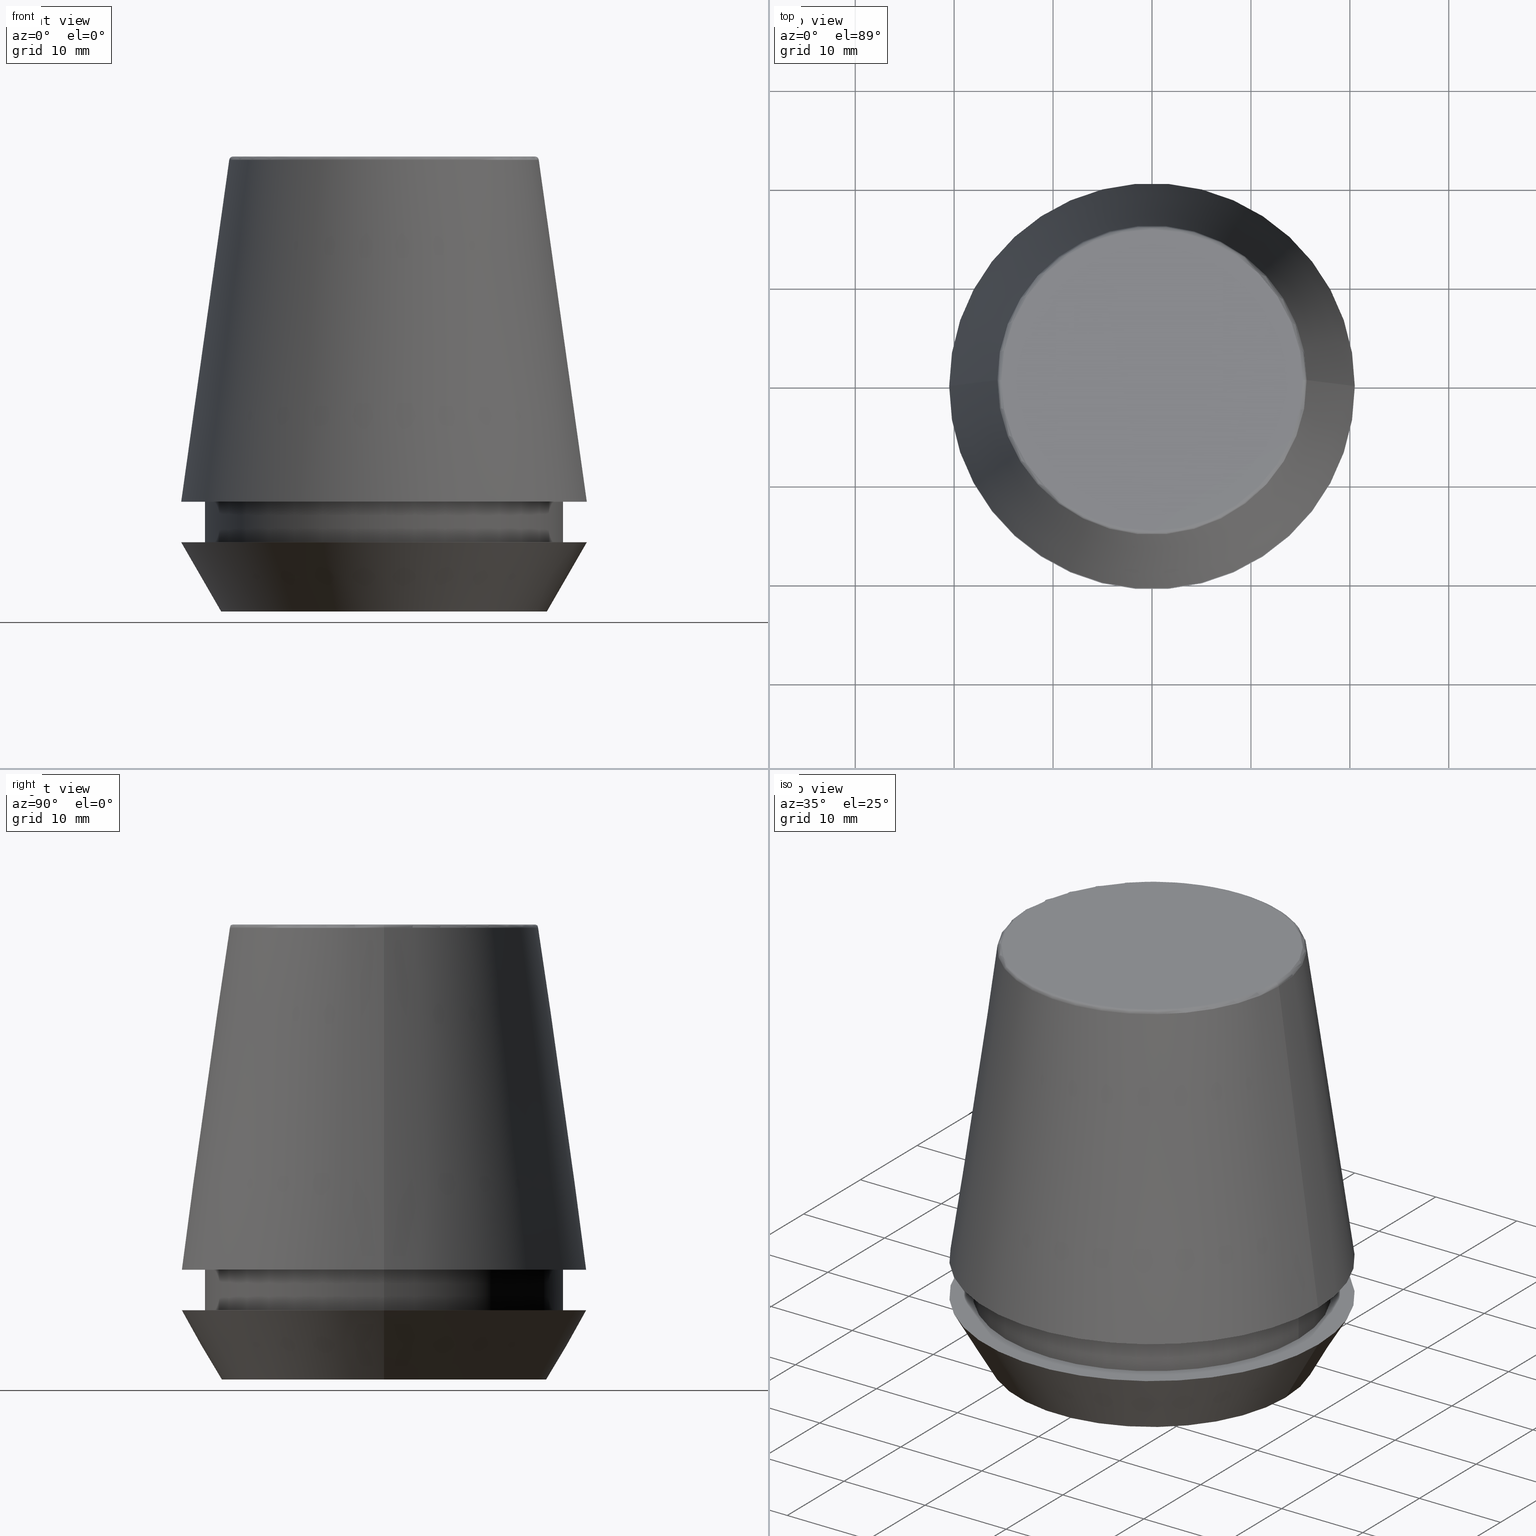
[diagram: canonical four-view strip — front | top / right | iso, engineering-drawing reading convention]
A machine part, canonical four-view strip (front | top / right | iso — engineering-drawing reading convention). The complete STEP part file that produces these views, byte-faithful:
ISO-10303-21;
HEADER;
FILE_DESCRIPTION (( 'STEP AP203' ),
    '1' );
FILE_NAME ('TAP COLLET ER 40G 10.0 X 8.0.STEP',
    '2019-04-10T03:52:26',
    ( '' ),
    ( '' ),
    'SwSTEP 2.0',
    'SolidWorks 2014',
    '' );
FILE_SCHEMA (( 'CONFIG_CONTROL_DESIGN' ));
ENDSEC;

DATA;
#1 = AXIS2_PLACEMENT_3D ( 'NONE', #218, #126, #375 ) ;
#2 = DIRECTION ( 'NONE',  ( 1.000000000000000000, 0.0000000000000000000, 0.0000000000000000000 ) ) ;
#3 = EDGE_CURVE ( 'NONE', #191, #173, #342, .T. ) ;
#4 = PRODUCT_RELATED_PRODUCT_CATEGORY ( 'detail', '', ( #16 ) ) ;
#5 = DIRECTION ( 'NONE',  ( 1.000000000000000000, 0.0000000000000000000, 0.0000000000000000000 ) ) ;
#6 = ORIENTED_EDGE ( 'NONE', *, *, #244, .F. ) ;
#7 = CARTESIAN_POINT ( 'NONE',  ( 0.0000000000000000000, 0.0000000000000000000, 11.09999999999999800 ) ) ;
#8 = CIRCLE ( 'NONE', #165, 0.3999999999999975800 ) ;
#9 = CARTESIAN_POINT ( 'NONE',  ( 16.45854811567268100, 0.0000000000000000000, 0.0000000000000000000 ) ) ;
#10 = AXIS2_PLACEMENT_3D ( 'NONE', #73, #252, #41 ) ;
#11 = ORIENTED_EDGE ( 'NONE', *, *, #358, .F. ) ;
#12 = DIRECTION ( 'NONE',  ( 0.0000000000000000000, -0.0000000000000000000, 1.000000000000000000 ) ) ;
#13 = DIRECTION ( 'NONE',  ( 0.0000000000000000000, 0.0000000000000000000, 1.000000000000000000 ) ) ;
#14 = ORIENTED_EDGE ( 'NONE', *, *, #85, .T. ) ;
#15 = DIRECTION ( 'NONE',  ( 0.0000000000000000000, 0.0000000000000000000, -1.000000000000000000 ) ) ;
#16 = PRODUCT ( 'TAP COLLET ER 40G 10.0 X 8.0', 'TAP COLLET ER 40G 10.0 X 8.0', '', ( #383 ) ) ;
#17 = PERSON_AND_ORGANIZATION_ROLE ( 'design_owner' ) ;
#18 = ORIENTED_EDGE ( 'NONE', *, *, #331, .F. ) ;
#19 = VERTEX_POINT ( 'NONE', #194 ) ;
#20 = UNCERTAINTY_MEASURE_WITH_UNIT (LENGTH_MEASURE( 1.000000000000000100E-005 ), #205, 'distance_accuracy_value', 'NONE');
#21 = EDGE_CURVE ( 'NONE', #325, #309, #322, .T. ) ;
#22 = CIRCLE ( 'NONE', #67, 16.45854811567268100 ) ;
#23 = ADVANCED_FACE ( 'NONE', ( #359 ), #295, .T. ) ;
#24 = DATE_AND_TIME ( #61, #142 ) ;
#25 = AXIS2_PLACEMENT_3D ( 'NONE', #56, #243, #318 ) ;
#26 = EDGE_LOOP ( 'NONE', ( #164, #18, #45, #304 ) ) ;
#27 = PRODUCT_DEFINITION_FORMATION_WITH_SPECIFIED_SOURCE ( 'ANY', '', #16, .NOT_KNOWN. ) ;
#28 = EDGE_CURVE ( 'NONE', #114, #29, #22, .T. ) ;
#29 = VERTEX_POINT ( 'NONE', #348 ) ;
#30 = ORIENTED_EDGE ( 'NONE', *, *, #185, .T. ) ;
#31 = FACE_OUTER_BOUND ( 'NONE', #62, .T. ) ;
#32 = DIRECTION ( 'NONE',  ( 1.000000000000000000, 0.0000000000000000000, 0.0000000000000000000 ) ) ;
#33 = CARTESIAN_POINT ( 'NONE',  ( 0.0000000000000000000, 0.0000000000000000000, 46.00000000000000000 ) ) ;
#34 = ORIENTED_EDGE ( 'NONE', *, *, #28, .F. ) ;
#35 = AXIS2_PLACEMENT_3D ( 'NONE', #38, #248, #70 ) ;
#36 = ORIENTED_EDGE ( 'NONE', *, *, #242, .T. ) ;
#37 = ORIENTED_EDGE ( 'NONE', *, *, #48, .T. ) ;
#38 = CARTESIAN_POINT ( 'NONE',  ( 0.0000000000000000000, 0.0000000000000000000, 45.65566924038402900 ) ) ;
#39 = EDGE_LOOP ( 'NONE', ( #240, #158, #335, #277 ) ) ;
#40 = DIRECTION ( 'NONE',  ( -0.0000000000000000000, -0.0000000000000000000, 1.000000000000000000 ) ) ;
#41 = DIRECTION ( 'NONE',  ( 0.0000000000000000000, 0.0000000000000000000, -1.000000000000000000 ) ) ;
#42 = CARTESIAN_POINT ( 'NONE',  ( -20.50000000000000000, 2.510525938252074100E-015, 7.000000000000006200 ) ) ;
#43 = ORIENTED_EDGE ( 'NONE', *, *, #242, .F. ) ;
#44 = VERTEX_POINT ( 'NONE', #372 ) ;
#45 = ORIENTED_EDGE ( 'NONE', *, *, #381, .T. ) ;
#46 = DIRECTION ( 'NONE',  ( 0.0000000000000000000, 0.0000000000000000000, -1.000000000000000000 ) ) ;
#47 = DIRECTION ( 'NONE',  ( -0.0000000000000000000, -0.0000000000000000000, 1.000000000000000000 ) ) ;
#48 = EDGE_CURVE ( 'NONE', #19, #94, #236, .T. ) ;
#49 = CARTESIAN_POINT ( 'NONE',  ( 0.0000000000000000000, 0.0000000000000000000, 0.0000000000000000000 ) ) ;
#50 = CARTESIAN_POINT ( 'NONE',  ( -15.24773554530077600, 1.867309052979791600E-015, 45.60000000000000100 ) ) ;
#51 = AXIS2_PLACEMENT_3D ( 'NONE', #79, #300, #186 ) ;
#52 = APPLICATION_PROTOCOL_DEFINITION ( 'international standard', 'config_control_design', 1994, #231 ) ;
#53 = ORIENTED_EDGE ( 'NONE', *, *, #232, .T. ) ;
#54 = CARTESIAN_POINT ( 'NONE',  ( -20.50032537154048700, 0.0000000000000000000, 11.09999999999999800 ) ) ;
#55 = ORIENTED_EDGE ( 'NONE', *, *, #89, .F. ) ;
#56 = CARTESIAN_POINT ( 'NONE',  ( 0.0000000000000000000, 0.0000000000000000000, 7.000000000000006200 ) ) ;
#57 = AXIS2_PLACEMENT_3D ( 'NONE', #310, #128, #5 ) ;
#58 = APPROVAL ( #182, 'UNSPECIFIED' ) ;
#59 = CARTESIAN_POINT ( 'NONE',  ( -18.10000000000000500, 2.216610706456710000E-015, 11.09999999999999800 ) ) ;
#60 = ORIENTED_EDGE ( 'NONE', *, *, #193, .F. ) ;
#61 = CALENDAR_DATE ( 2019, 10, 4 ) ;
#62 = EDGE_LOOP ( 'NONE', ( #181, #53, #371, #84 ) ) ;
#63 = CARTESIAN_POINT ( 'NONE',  ( 18.10000000000000100, 0.0000000000000000000, 6.999999999999999100 ) ) ;
#64 = EDGE_LOOP ( 'NONE', ( #88, #30 ) ) ;
#65 = PERSON_AND_ORGANIZATION ( #308, #97 ) ;
#66 = APPROVAL ( #364, 'UNSPECIFIED' ) ;
#67 = AXIS2_PLACEMENT_3D ( 'NONE', #197, #159, #82 ) ;
#68 = EDGE_LOOP ( 'NONE', ( #301, #387, #95, #43 ) ) ;
#69 = EDGE_CURVE ( 'NONE', #184, #131, #215, .T. ) ;
#70 = DIRECTION ( 'NONE',  ( 1.000000000000000000, 0.0000000000000000000, 0.0000000000000000000 ) ) ;
#71 = CARTESIAN_POINT ( 'NONE',  ( 16.45854811567268100, 0.0000000000000000000, 0.0000000000000000000 ) ) ;
#72 = CC_DESIGN_PERSON_AND_ORGANIZATION_ASSIGNMENT ( #100, #138, ( #27 ) ) ;
#73 = CARTESIAN_POINT ( 'NONE',  ( 15.24773554530077600, 0.0000000000000000000, 45.60000000000000100 ) ) ;
#74 = ORIENTED_EDGE ( 'NONE', *, *, #244, .T. ) ;
#75 = ADVANCED_BREP_SHAPE_REPRESENTATION ( 'TAP COLLET ER 40G 10.0 X 8.0', ( #382, #213 ), #176 ) ;
#76 = DIRECTION ( 'NONE',  ( -0.4999999999999941700, 6.123233995736694500E-017, 0.8660254037844420400 ) ) ;
#77 = DIRECTION ( 'NONE',  ( 0.4999999999999941700, 0.0000000000000000000, 0.8660254037844420400 ) ) ;
#78 = AXIS2_PLACEMENT_3D ( 'NONE', #350, #99, #320 ) ;
#79 = CARTESIAN_POINT ( 'NONE',  ( 0.0000000000000000000, 0.0000000000000000000, 11.09999999999999800 ) ) ;
#80 = CALENDAR_DATE ( 2019, 10, 4 ) ;
#81 = APPROVAL_ROLE ( '' ) ;
#82 = DIRECTION ( 'NONE',  ( 1.000000000000000000, 0.0000000000000000000, 0.0000000000000000000 ) ) ;
#83 = EDGE_LOOP ( 'NONE', ( #267, #289 ) ) ;
#84 = ORIENTED_EDGE ( 'NONE', *, *, #381, .F. ) ;
#85 = EDGE_CURVE ( 'NONE', #136, #363, #385, .T. ) ;
#86 = CALENDAR_DATE ( 2019, 10, 4 ) ;
#87 = APPROVAL_DATE_TIME ( #291, #66 ) ;
#88 = ORIENTED_EDGE ( 'NONE', *, *, #3, .T. ) ;
#89 = EDGE_CURVE ( 'NONE', #309, #325, #288, .T. ) ;
#90 = DIRECTION ( 'NONE',  ( -0.0000000000000000000, -0.0000000000000000000, 1.000000000000000000 ) ) ;
#91 = APPROVAL_PERSON_ORGANIZATION ( #192, #241, #81 ) ;
#92 = LINE ( 'NONE', #229, #311 ) ;
#93 = ORIENTED_EDGE ( 'NONE', *, *, #265, .F. ) ;
#94 = VERTEX_POINT ( 'NONE', #351 ) ;
#95 = ORIENTED_EDGE ( 'NONE', *, *, #21, .F. ) ;
#96 = CIRCLE ( 'NONE', #313, 15.24773554530077600 ) ;
#97 = ORGANIZATION ( 'UNSPECIFIED', 'UNSPECIFIED', '' ) ;
#98 = DIRECTION ( 'NONE',  ( -0.0000000000000000000, -0.0000000000000000000, 1.000000000000000000 ) ) ;
#99 = DIRECTION ( 'NONE',  ( -0.0000000000000000000, -0.0000000000000000000, 1.000000000000000000 ) ) ;
#100 = PERSON_AND_ORGANIZATION ( #308, #97 ) ;
#101 = DIRECTION ( 'NONE',  ( -0.0000000000000000000, -0.0000000000000000000, 1.000000000000000000 ) ) ;
#102 = DIRECTION ( 'NONE',  ( 1.000000000000000000, 0.0000000000000000000, 0.0000000000000000000 ) ) ;
#103 = EDGE_CURVE ( 'NONE', #44, #189, #201, .T. ) ;
#104 = CARTESIAN_POINT ( 'NONE',  ( 0.0000000000000000000, 0.0000000000000000000, 46.00000000000000000 ) ) ;
#105 = DIRECTION ( 'NONE',  ( -0.0000000000000000000, -0.0000000000000000000, 1.000000000000000000 ) ) ;
#106 = CARTESIAN_POINT ( 'NONE',  ( -20.50032537154048700, 0.0000000000000000000, 11.09999999999999800 ) ) ;
#107 = APPROVAL_DATE_TIME ( #183, #241 ) ;
#108 = ORIENTED_EDGE ( 'NONE', *, *, #156, .F. ) ;
#109 = COORDINATED_UNIVERSAL_TIME_OFFSET ( 5, 30, .AHEAD. ) ;
#110 = ADVANCED_FACE ( 'NONE', ( #327, #298 ), #276, .F. ) ;
#111 = VECTOR ( 'NONE', #116, 1000.000000000000000 ) ;
#112 = CIRCLE ( 'NONE', #222, 18.10000000000000100 ) ;
#113 = DIRECTION ( 'NONE',  ( 1.000000000000000000, 0.0000000000000000000, 0.0000000000000000000 ) ) ;
#114 = VERTEX_POINT ( 'NONE', #71 ) ;
#115 = AXIS2_PLACEMENT_3D ( 'NONE', #224, #40, #2 ) ;
#116 = DIRECTION ( 'NONE',  ( 0.1391731009600587200, 1.704378926181473400E-017, -0.9902680687415712500 ) ) ;
#117 = ORIENTED_EDGE ( 'NONE', *, *, #21, .T. ) ;
#118 = COORDINATED_UNIVERSAL_TIME_OFFSET ( 5, 30, .AHEAD. ) ;
#119 = DIRECTION ( 'NONE',  ( 0.0000000000000000000, -0.0000000000000000000, 1.000000000000000000 ) ) ;
#120 = PERSON_AND_ORGANIZATION ( #308, #97 ) ;
#121 = AXIS2_PLACEMENT_3D ( 'NONE', #154, #292, #162 ) ;
#122 = CC_DESIGN_PERSON_AND_ORGANIZATION_ASSIGNMENT ( #195, #361, ( #27 ) ) ;
#123 = CALENDAR_DATE ( 2019, 10, 4 ) ;
#124 = DATE_AND_TIME ( #123, #150 ) ;
#125 = ORIENTED_EDGE ( 'NONE', *, *, #237, .F. ) ;
#126 = DIRECTION ( 'NONE',  ( 0.0000000000000000000, 0.0000000000000000000, -1.000000000000000000 ) ) ;
#127 = PERSON_AND_ORGANIZATION ( #308, #97 ) ;
#128 = DIRECTION ( 'NONE',  ( -0.0000000000000000000, -0.0000000000000000000, 1.000000000000000000 ) ) ;
#129 = EDGE_LOOP ( 'NONE', ( #117, #285 ) ) ;
#130 = PLANE ( 'NONE',  #226 ) ;
#131 = VERTEX_POINT ( 'NONE', #198 ) ;
#132 = DIRECTION ( 'NONE',  ( -0.0000000000000000000, -0.0000000000000000000, 1.000000000000000000 ) ) ;
#133 = DIRECTION ( 'NONE',  ( 1.000000000000000000, 0.0000000000000000000, 0.0000000000000000000 ) ) ;
#134 = APPROVAL_PERSON_ORGANIZATION ( #127, #58, #211 ) ;
#135 = CIRCLE ( 'NONE', #293, 15.64384277279740400 ) ;
#136 = VERTEX_POINT ( 'NONE', #160 ) ;
#137 =( NAMED_UNIT ( * ) SI_UNIT ( $, .STERADIAN. ) SOLID_ANGLE_UNIT ( ) );
#138 = PERSON_AND_ORGANIZATION_ROLE ( 'design_supplier' ) ;
#139 = COORDINATED_UNIVERSAL_TIME_OFFSET ( 5, 30, .AHEAD. ) ;
#140 = PERSON_AND_ORGANIZATION_ROLE ( 'classification_officer' ) ;
#141 = CARTESIAN_POINT ( 'NONE',  ( 0.0000000000000000000, 15.24773554530077600, 46.00000000000000000 ) ) ;
#142 = LOCAL_TIME ( 9, 22, 26.00000000000000000, #139 ) ;
#143 = CC_DESIGN_APPROVAL ( #66, ( #27 ) ) ;
#144 = ORIENTED_EDGE ( 'NONE', *, *, #302, .F. ) ;
#145 = ADVANCED_FACE ( 'NONE', ( #303 ), #297, .T. ) ;
#146 = APPROVAL_PERSON_ORGANIZATION ( #166, #66, #305 ) ;
#147 = DIRECTION ( 'NONE',  ( -1.000000000000000000, 1.224646799147353900E-016, 0.0000000000000000000 ) ) ;
#148 = ORIENTED_EDGE ( 'NONE', *, *, #185, .F. ) ;
#149 = CARTESIAN_POINT ( 'NONE',  ( 0.0000000000000000000, 0.0000000000000000000, 7.000000000000006200 ) ) ;
#150 = LOCAL_TIME ( 9, 22, 26.00000000000000000, #221 ) ;
#151 = AXIS2_PLACEMENT_3D ( 'NONE', #321, #101, #294 ) ;
#152 = AXIS2_PLACEMENT_3D ( 'NONE', #230, #15, #312 ) ;
#153 = LINE ( 'NONE', #106, #317 ) ;
#154 = CARTESIAN_POINT ( 'NONE',  ( 0.0000000000000000000, 0.0000000000000000000, 46.00000000000000000 ) ) ;
#155 = LOCAL_TIME ( 9, 22, 26.00000000000000000, #118 ) ;
#156 = EDGE_CURVE ( 'NONE', #19, #131, #287, .T. ) ;
#157 = ADVANCED_FACE ( 'NONE', ( #286 ), #260, .T. ) ;
#158 = ORIENTED_EDGE ( 'NONE', *, *, #331, .T. ) ;
#159 = DIRECTION ( 'NONE',  ( -0.0000000000000000000, -0.0000000000000000000, 1.000000000000000000 ) ) ;
#160 = CARTESIAN_POINT ( 'NONE',  ( -18.10000000000000100, 2.216610706456709600E-015, 6.999999999999999100 ) ) ;
#161 = ADVANCED_FACE ( 'NONE', ( #261 ), #275, .T. ) ;
#162 = DIRECTION ( 'NONE',  ( 1.000000000000000000, 0.0000000000000000000, 0.0000000000000000000 ) ) ;
#163 = ORIENTED_EDGE ( 'NONE', *, *, #85, .F. ) ;
#164 = ORIENTED_EDGE ( 'NONE', *, *, #232, .F. ) ;
#165 = AXIS2_PLACEMENT_3D ( 'NONE', #50, #238, #147 ) ;
#166 = PERSON_AND_ORGANIZATION ( #308, #97 ) ;
#167 = DIRECTION ( 'NONE',  ( 1.000000000000000000, 0.0000000000000000000, 0.0000000000000000000 ) ) ;
#168 = DIRECTION ( 'NONE',  ( 1.000000000000000000, 0.0000000000000000000, 0.0000000000000000000 ) ) ;
#169 = DIRECTION ( 'NONE',  ( -0.0000000000000000000, -0.0000000000000000000, 1.000000000000000000 ) ) ;
#170 = CARTESIAN_POINT ( 'NONE',  ( 0.0000000000000000000, 0.0000000000000000000, 45.65566924038402900 ) ) ;
#171 = CARTESIAN_POINT ( 'NONE',  ( -16.45854811567268100, 2.015590826847124800E-015, 0.0000000000000000000 ) ) ;
#172 = DESIGN_CONTEXT ( 'detailed design', #231, 'design' ) ;
#173 = VERTEX_POINT ( 'NONE', #42 ) ;
#174 = FACE_BOUND ( 'NONE', #129, .T. ) ;
#175 = APPLICATION_CONTEXT ( 'configuration controlled 3d designs of mechanical parts and assemblies' ) ;
#176 =( GEOMETRIC_REPRESENTATION_CONTEXT ( 3 ) GLOBAL_UNCERTAINTY_ASSIGNED_CONTEXT ( ( #20 ) ) GLOBAL_UNIT_ASSIGNED_CONTEXT ( ( #205, #340, #137 ) ) REPRESENTATION_CONTEXT ( 'NONE', 'WORKASPACE' ) );
#177 = ORIENTED_EDGE ( 'NONE', *, *, #28, .T. ) ;
#178 = DATE_TIME_ROLE ( 'classification_date' ) ;
#179 = ORIENTED_EDGE ( 'NONE', *, *, #3, .F. ) ;
#180 = ORIENTED_EDGE ( 'NONE', *, *, #347, .F. ) ;
#181 = ORIENTED_EDGE ( 'NONE', *, *, #48, .F. ) ;
#182 = APPROVAL_STATUS ( 'not_yet_approved' ) ;
#183 = DATE_AND_TIME ( #228, #299 ) ;
#184 = VERTEX_POINT ( 'NONE', #225 ) ;
#185 = EDGE_CURVE ( 'NONE', #173, #191, #257, .T. ) ;
#186 = DIRECTION ( 'NONE',  ( 1.000000000000000000, 0.0000000000000000000, 0.0000000000000000000 ) ) ;
#187 = CONICAL_SURFACE ( 'NONE', #370, 16.45854811567268100, 0.5235987755982921500 ) ;
#188 = CARTESIAN_POINT ( 'NONE',  ( 18.10000000000000500, 0.0000000000000000000, 46.00000000000000000 ) ) ;
#189 = VERTEX_POINT ( 'NONE', #54 ) ;
#190 = CC_DESIGN_SECURITY_CLASSIFICATION ( #217, ( #27 ) ) ;
#191 = VERTEX_POINT ( 'NONE', #255 ) ;
#192 = PERSON_AND_ORGANIZATION ( #308, #97 ) ;
#193 = EDGE_CURVE ( 'NONE', #29, #173, #273, .T. ) ;
#194 = CARTESIAN_POINT ( 'NONE',  ( 15.64384277279740400, 2.213191991290356800E-015, 45.65566924038402900 ) ) ;
#195 = PERSON_AND_ORGANIZATION ( #308, #97 ) ;
#196 = FACE_OUTER_BOUND ( 'NONE', #353, .T. ) ;
#197 = CARTESIAN_POINT ( 'NONE',  ( 0.0000000000000000000, 0.0000000000000000000, 0.0000000000000000000 ) ) ;
#198 = CARTESIAN_POINT ( 'NONE',  ( 15.24773554530077600, 0.0000000000000000000, 46.00000000000000000 ) ) ;
#199 = CARTESIAN_POINT ( 'NONE',  ( 0.0000000000000000000, 0.0000000000000000000, 46.00000000000000000 ) ) ;
#200 = DIRECTION ( 'NONE',  ( 0.0000000000000000000, 0.0000000000000000000, -1.000000000000000000 ) ) ;
#201 = CIRCLE ( 'NONE', #78, 20.50032537154048700 ) ;
#202 = ORIENTED_EDGE ( 'NONE', *, *, #103, .F. ) ;
#203 = DIRECTION ( 'NONE',  ( 1.000000000000000000, 0.0000000000000000000, 0.0000000000000000000 ) ) ;
#204 = DIRECTION ( 'NONE',  ( 1.000000000000000000, 0.0000000000000000000, 0.0000000000000000000 ) ) ;
#205 =( LENGTH_UNIT ( ) NAMED_UNIT ( * ) SI_UNIT ( .MILLI., .METRE. ) );
#206 = CONICAL_SURFACE ( 'NONE', #152, 20.50032537154048700, 0.1396263401595396200 ) ;
#207 = ADVANCED_FACE ( 'NONE', ( #250 ), #130, .F. ) ;
#208 = CC_DESIGN_PERSON_AND_ORGANIZATION_ASSIGNMENT ( #120, #140, ( #217 ) ) ;
#209 = ADVANCED_FACE ( 'NONE', ( #269 ), #282, .T. ) ;
#210 = CC_DESIGN_DATE_AND_TIME_ASSIGNMENT ( #124, #178, ( #217 ) ) ;
#211 = APPROVAL_ROLE ( '' ) ;
#212 = ORIENTED_EDGE ( 'NONE', *, *, #368, .T. ) ;
#213 = AXIS2_PLACEMENT_3D ( 'NONE', #266, #13, #204 ) ;
#214 = APPROVAL_DATE_TIME ( #24, #58 ) ;
#215 = CIRCLE ( 'NONE', #121, 15.24773554530077600 ) ;
#216 = CC_DESIGN_PERSON_AND_ORGANIZATION_ASSIGNMENT ( #65, #17, ( #16 ) ) ;
#217 = SECURITY_CLASSIFICATION ( '', '', #333 ) ;
#218 = CARTESIAN_POINT ( 'NONE',  ( 0.0000000000000000000, 20.50000000000000000, 7.000000000000002700 ) ) ;
#219 = CC_DESIGN_APPROVAL ( #58, ( #217 ) ) ;
#220 = ADVANCED_FACE ( 'NONE', ( #274 ), #264, .F. ) ;
#221 = COORDINATED_UNIVERSAL_TIME_OFFSET ( 5, 30, .AHEAD. ) ;
#222 = AXIS2_PLACEMENT_3D ( 'NONE', #354, #169, #378 ) ;
#223 = LOCAL_TIME ( 9, 22, 26.00000000000000000, #324 ) ;
#224 = CARTESIAN_POINT ( 'NONE',  ( 0.0000000000000000000, 0.0000000000000000000, 11.09999999999999800 ) ) ;
#225 = CARTESIAN_POINT ( 'NONE',  ( -15.24773554530077600, 1.891563625393435400E-015, 46.00000000000000000 ) ) ;
#226 = AXIS2_PLACEMENT_3D ( 'NONE', #352, #119, #168 ) ;
#227 = CARTESIAN_POINT ( 'NONE',  ( 0.0000000000000000000, 0.0000000000000000000, 0.0000000000000000000 ) ) ;
#228 = CALENDAR_DATE ( 2019, 10, 4 ) ;
#229 = CARTESIAN_POINT ( 'NONE',  ( -18.10000000000000500, 2.216610706456710000E-015, 46.00000000000000000 ) ) ;
#230 = CARTESIAN_POINT ( 'NONE',  ( 0.0000000000000000000, 0.0000000000000000000, 11.09999999999999800 ) ) ;
#231 = APPLICATION_CONTEXT ( 'configuration controlled 3d designs of mechanical parts and assemblies' ) ;
#232 = EDGE_CURVE ( 'NONE', #19, #44, #262, .T. ) ;
#233 = EDGE_LOOP ( 'NONE', ( #125, #163 ) ) ;
#234 = PRODUCT_DEFINITION ( 'UNKNOWN', '', #27, #172 ) ;
#235 = CARTESIAN_POINT ( 'NONE',  ( 0.0000000000000000000, 0.0000000000000000000, 0.0000000000000000000 ) ) ;
#236 = CIRCLE ( 'NONE', #35, 15.64384277279740400 ) ;
#237 = EDGE_CURVE ( 'NONE', #363, #136, #112, .T. ) ;
#238 = DIRECTION ( 'NONE',  ( 1.224646799147353200E-016, 1.000000000000000000, 0.0000000000000000000 ) ) ;
#239 = CC_DESIGN_APPROVAL ( #241, ( #234 ) ) ;
#240 = ORIENTED_EDGE ( 'NONE', *, *, #368, .F. ) ;
#241 = APPROVAL ( #268, 'UNSPECIFIED' ) ;
#242 = EDGE_CURVE ( 'NONE', #363, #325, #258, .T. ) ;
#243 = DIRECTION ( 'NONE',  ( -0.0000000000000000000, -0.0000000000000000000, 1.000000000000000000 ) ) ;
#244 = EDGE_CURVE ( 'NONE', #29, #114, #253, .T. ) ;
#245 = EDGE_LOOP ( 'NONE', ( #180, #202 ) ) ;
#246 = CARTESIAN_POINT ( 'NONE',  ( 0.0000000000000000000, 0.0000000000000000000, 11.09999999999999800 ) ) ;
#247 = PRODUCT_DEFINITION_SHAPE ( 'NONE', 'NONE',  #234 ) ;
#248 = DIRECTION ( 'NONE',  ( -0.0000000000000000000, -0.0000000000000000000, 1.000000000000000000 ) ) ;
#249 = AXIS2_PLACEMENT_3D ( 'NONE', #49, #357, #367 ) ;
#250 = FACE_OUTER_BOUND ( 'NONE', #316, .T. ) ;
#251 = VECTOR ( 'NONE', #77, 1000.000000000000000 ) ;
#252 = DIRECTION ( 'NONE',  ( 0.0000000000000000000, -1.000000000000000000, 0.0000000000000000000 ) ) ;
#253 = CIRCLE ( 'NONE', #307, 16.45854811567268100 ) ;
#254 = CC_DESIGN_PERSON_AND_ORGANIZATION_ASSIGNMENT ( #283, #386, ( #234 ) ) ;
#255 = CARTESIAN_POINT ( 'NONE',  ( 20.50000000000000000, 0.0000000000000000000, 7.000000000000006200 ) ) ;
#256 = DIRECTION ( 'NONE',  ( -1.000000000000000000, 0.0000000000000000000, -0.0000000000000000000 ) ) ;
#257 = CIRCLE ( 'NONE', #373, 20.50000000000000000 ) ;
#258 = LINE ( 'NONE', #188, #280 ) ;
#259 = DIRECTION ( 'NONE',  ( 1.000000000000000000, 0.0000000000000000000, 0.0000000000000000000 ) ) ;
#260 = TOROIDAL_SURFACE ( 'NONE', #57, 15.24773554530077600, 0.3999999999999991900 ) ;
#261 = FACE_OUTER_BOUND ( 'NONE', #68, .T. ) ;
#262 = LINE ( 'NONE', #341, #111 ) ;
#263 = DIRECTION ( 'NONE',  ( -0.0000000000000000000, -0.0000000000000000000, 1.000000000000000000 ) ) ;
#264 = PLANE ( 'NONE',  #278 ) ;
#265 = EDGE_CURVE ( 'NONE', #114, #191, #279, .T. ) ;
#266 = CARTESIAN_POINT ( 'NONE',  ( 0.0000000000000000000, 0.0000000000000000000, 0.0000000000000000000 ) ) ;
#267 = ORIENTED_EDGE ( 'NONE', *, *, #302, .T. ) ;
#268 = APPROVAL_STATUS ( 'not_yet_approved' ) ;
#269 = FACE_OUTER_BOUND ( 'NONE', #26, .T. ) ;
#270 = VECTOR ( 'NONE', #76, 1000.000000000000000 ) ;
#271 = AXIS2_PLACEMENT_3D ( 'NONE', #246, #346, #32 ) ;
#272 = SHAPE_DEFINITION_REPRESENTATION ( #247, #75 ) ;
#273 = LINE ( 'NONE', #171, #270 ) ;
#274 = FACE_OUTER_BOUND ( 'NONE', #83, .T. ) ;
#275 = CYLINDRICAL_SURFACE ( 'NONE', #369, 18.10000000000000500 ) ;
#276 = PLANE ( 'NONE',  #1 ) ;
#277 = ORIENTED_EDGE ( 'NONE', *, *, #69, .F. ) ;
#278 = AXIS2_PLACEMENT_3D ( 'NONE', #141, #46, #256 ) ;
#279 = LINE ( 'NONE', #9, #251 ) ;
#280 = VECTOR ( 'NONE', #132, 1000.000000000000000 ) ;
#281 = DIRECTION ( 'NONE',  ( 1.000000000000000000, 0.0000000000000000000, 0.0000000000000000000 ) ) ;
#282 = CONICAL_SURFACE ( 'NONE', #355, 20.50032537154048700, 0.1396263401595396200 ) ;
#283 = PERSON_AND_ORGANIZATION ( #308, #97 ) ;
#284 = DATE_TIME_ROLE ( 'creation_date' ) ;
#285 = ORIENTED_EDGE ( 'NONE', *, *, #89, .T. ) ;
#286 = FACE_OUTER_BOUND ( 'NONE', #377, .T. ) ;
#287 = CIRCLE ( 'NONE', #10, 0.3999999999999975800 ) ;
#288 = CIRCLE ( 'NONE', #115, 18.10000000000000500 ) ;
#289 = ORIENTED_EDGE ( 'NONE', *, *, #69, .T. ) ;
#290 = CLOSED_SHELL ( 'NONE', ( #157, #374, #161, #365, #207, #366, #110, #23, #336, #209, #145, #220 ) ) ;
#291 = DATE_AND_TIME ( #86, #155 ) ;
#292 = DIRECTION ( 'NONE',  ( -0.0000000000000000000, -0.0000000000000000000, 1.000000000000000000 ) ) ;
#293 = AXIS2_PLACEMENT_3D ( 'NONE', #170, #379, #203 ) ;
#294 = DIRECTION ( 'NONE',  ( 1.000000000000000000, 0.0000000000000000000, 0.0000000000000000000 ) ) ;
#295 = CYLINDRICAL_SURFACE ( 'NONE', #319, 18.10000000000000500 ) ;
#296 = DIRECTION ( 'NONE',  ( -0.0000000000000000000, -0.0000000000000000000, 1.000000000000000000 ) ) ;
#297 = TOROIDAL_SURFACE ( 'NONE', #384, 15.24773554530077600, 0.3999999999999991900 ) ;
#298 = FACE_OUTER_BOUND ( 'NONE', #64, .T. ) ;
#299 = LOCAL_TIME ( 9, 22, 26.00000000000000000, #109 ) ;
#300 = DIRECTION ( 'NONE',  ( -0.0000000000000000000, -0.0000000000000000000, 1.000000000000000000 ) ) ;
#301 = ORIENTED_EDGE ( 'NONE', *, *, #237, .T. ) ;
#302 = EDGE_CURVE ( 'NONE', #131, #184, #96, .T. ) ;
#303 = FACE_OUTER_BOUND ( 'NONE', #39, .T. ) ;
#304 = ORIENTED_EDGE ( 'NONE', *, *, #347, .T. ) ;
#305 = APPROVAL_ROLE ( '' ) ;
#306 = CC_DESIGN_DATE_AND_TIME_ASSIGNMENT ( #338, #284, ( #234 ) ) ;
#307 = AXIS2_PLACEMENT_3D ( 'NONE', #227, #47, #259 ) ;
#308 = PERSON ( 'UNSPECIFIED', 'UNSPECIFIED', 'UNSPECIFIED', ('UNSPECIFIED'), ('UNSPECIFIED'), ('UNSPECIFIED') ) ;
#309 = VERTEX_POINT ( 'NONE', #59 ) ;
#310 = CARTESIAN_POINT ( 'NONE',  ( 0.0000000000000000000, 0.0000000000000000000, 45.60000000000000100 ) ) ;
#311 = VECTOR ( 'NONE', #263, 1000.000000000000000 ) ;
#312 = DIRECTION ( 'NONE',  ( -1.000000000000000000, 0.0000000000000000000, 0.0000000000000000000 ) ) ;
#313 = AXIS2_PLACEMENT_3D ( 'NONE', #104, #326, #133 ) ;
#314 = CARTESIAN_POINT ( 'NONE',  ( 18.10000000000000500, 0.0000000000000000000, 11.09999999999999800 ) ) ;
#315 = CONICAL_SURFACE ( 'NONE', #249, 16.45854811567268100, 0.5235987755982921500 ) ;
#316 = EDGE_LOOP ( 'NONE', ( #34, #6 ) ) ;
#317 = VECTOR ( 'NONE', #332, 1000.000000000000000 ) ;
#318 = DIRECTION ( 'NONE',  ( 1.000000000000000000, 0.0000000000000000000, 0.0000000000000000000 ) ) ;
#319 = AXIS2_PLACEMENT_3D ( 'NONE', #33, #98, #345 ) ;
#320 = DIRECTION ( 'NONE',  ( 1.000000000000000000, 0.0000000000000000000, 0.0000000000000000000 ) ) ;
#321 = CARTESIAN_POINT ( 'NONE',  ( 0.0000000000000000000, 0.0000000000000000000, 6.999999999999999100 ) ) ;
#322 = CIRCLE ( 'NONE', #271, 18.10000000000000500 ) ;
#323 = CIRCLE ( 'NONE', #51, 20.50032537154048700 ) ;
#324 = COORDINATED_UNIVERSAL_TIME_OFFSET ( 5, 30, .AHEAD. ) ;
#325 = VERTEX_POINT ( 'NONE', #314 ) ;
#326 = DIRECTION ( 'NONE',  ( -0.0000000000000000000, -0.0000000000000000000, 1.000000000000000000 ) ) ;
#327 = FACE_BOUND ( 'NONE', #233, .T. ) ;
#328 = FACE_OUTER_BOUND ( 'NONE', #343, .T. ) ;
#329 = ORIENTED_EDGE ( 'NONE', *, *, #193, .T. ) ;
#330 = DIRECTION ( 'NONE',  ( 1.000000000000000000, 0.0000000000000000000, 0.0000000000000000000 ) ) ;
#331 = EDGE_CURVE ( 'NONE', #94, #19, #135, .T. ) ;
#332 = DIRECTION ( 'NONE',  ( -0.1391731009600587200, 0.0000000000000000000, -0.9902680687415712500 ) ) ;
#333 = SECURITY_CLASSIFICATION_LEVEL ( 'unclassified' ) ;
#334 = PLANE ( 'NONE',  #362 ) ;
#335 = ORIENTED_EDGE ( 'NONE', *, *, #156, .T. ) ;
#336 = ADVANCED_FACE ( 'NONE', ( #344, #174 ), #334, .F. ) ;
#337 = CARTESIAN_POINT ( 'NONE',  ( 0.0000000000000000000, 0.0000000000000000000, 45.60000000000000100 ) ) ;
#338 = DATE_AND_TIME ( #80, #223 ) ;
#339 = EDGE_LOOP ( 'NONE', ( #11, #14, #36, #55 ) ) ;
#340 =( NAMED_UNIT ( * ) PLANE_ANGLE_UNIT ( ) SI_UNIT ( $, .RADIAN. ) );
#341 = CARTESIAN_POINT ( 'NONE',  ( 20.50032537154048700, 2.510565784773633700E-015, 11.09999999999999800 ) ) ;
#342 = CIRCLE ( 'NONE', #25, 20.50000000000000000 ) ;
#343 = EDGE_LOOP ( 'NONE', ( #60, #74, #349, #148 ) ) ;
#344 = FACE_OUTER_BOUND ( 'NONE', #245, .T. ) ;
#345 = DIRECTION ( 'NONE',  ( 1.000000000000000000, 0.0000000000000000000, 0.0000000000000000000 ) ) ;
#346 = DIRECTION ( 'NONE',  ( -0.0000000000000000000, -0.0000000000000000000, 1.000000000000000000 ) ) ;
#347 = EDGE_CURVE ( 'NONE', #189, #44, #323, .T. ) ;
#348 = CARTESIAN_POINT ( 'NONE',  ( -16.45854811567268100, 2.263058382549599700E-015, 0.0000000000000000000 ) ) ;
#349 = ORIENTED_EDGE ( 'NONE', *, *, #265, .T. ) ;
#350 = CARTESIAN_POINT ( 'NONE',  ( 0.0000000000000000000, 0.0000000000000000000, 11.09999999999999800 ) ) ;
#351 = CARTESIAN_POINT ( 'NONE',  ( -15.64384277279740400, 0.0000000000000000000, 45.65566924038402900 ) ) ;
#352 = CARTESIAN_POINT ( 'NONE',  ( 0.0000000000000000000, 0.0000000000000000000, 0.0000000000000000000 ) ) ;
#353 = EDGE_LOOP ( 'NONE', ( #177, #329, #179, #93 ) ) ;
#354 = CARTESIAN_POINT ( 'NONE',  ( 0.0000000000000000000, 0.0000000000000000000, 6.999999999999999100 ) ) ;
#355 = AXIS2_PLACEMENT_3D ( 'NONE', #7, #200, #360 ) ;
#356 = CARTESIAN_POINT ( 'NONE',  ( 0.0000000000000000000, 20.50032537154048700, 11.09999999999999800 ) ) ;
#357 = DIRECTION ( 'NONE',  ( -0.0000000000000000000, -0.0000000000000000000, 1.000000000000000000 ) ) ;
#358 = EDGE_CURVE ( 'NONE', #136, #309, #92, .T. ) ;
#359 = FACE_OUTER_BOUND ( 'NONE', #339, .T. ) ;
#360 = DIRECTION ( 'NONE',  ( -1.000000000000000000, 0.0000000000000000000, 0.0000000000000000000 ) ) ;
#361 = PERSON_AND_ORGANIZATION_ROLE ( 'creator' ) ;
#362 = AXIS2_PLACEMENT_3D ( 'NONE', #356, #12, #281 ) ;
#363 = VERTEX_POINT ( 'NONE', #63 ) ;
#364 = APPROVAL_STATUS ( 'not_yet_approved' ) ;
#365 = ADVANCED_FACE ( 'NONE', ( #196 ), #187, .T. ) ;
#366 = ADVANCED_FACE ( 'NONE', ( #328 ), #315, .T. ) ;
#367 = DIRECTION ( 'NONE',  ( 1.000000000000000000, 0.0000000000000000000, 0.0000000000000000000 ) ) ;
#368 = EDGE_CURVE ( 'NONE', #94, #184, #8, .T. ) ;
#369 = AXIS2_PLACEMENT_3D ( 'NONE', #199, #90, #113 ) ;
#370 = AXIS2_PLACEMENT_3D ( 'NONE', #235, #105, #330 ) ;
#371 = ORIENTED_EDGE ( 'NONE', *, *, #103, .T. ) ;
#372 = CARTESIAN_POINT ( 'NONE',  ( 20.50032537154048700, 2.510565784773633700E-015, 11.09999999999999800 ) ) ;
#373 = AXIS2_PLACEMENT_3D ( 'NONE', #149, #296, #102 ) ;
#374 = ADVANCED_FACE ( 'NONE', ( #31 ), #206, .T. ) ;
#375 = DIRECTION ( 'NONE',  ( -1.000000000000000000, 0.0000000000000000000, -0.0000000000000000000 ) ) ;
#376 = DIRECTION ( 'NONE',  ( -0.0000000000000000000, -0.0000000000000000000, 1.000000000000000000 ) ) ;
#377 = EDGE_LOOP ( 'NONE', ( #37, #212, #144, #108 ) ) ;
#378 = DIRECTION ( 'NONE',  ( 1.000000000000000000, 0.0000000000000000000, 0.0000000000000000000 ) ) ;
#379 = DIRECTION ( 'NONE',  ( -0.0000000000000000000, -0.0000000000000000000, 1.000000000000000000 ) ) ;
#380 = APPLICATION_PROTOCOL_DEFINITION ( 'international standard', 'config_control_design', 1994, #175 ) ;
#381 = EDGE_CURVE ( 'NONE', #94, #189, #153, .T. ) ;
#382 = MANIFOLD_SOLID_BREP ( 'Revolve1', #290 ) ;
#383 = MECHANICAL_CONTEXT ( 'NONE', #175, 'mechanical' ) ;
#384 = AXIS2_PLACEMENT_3D ( 'NONE', #337, #376, #167 ) ;
#385 = CIRCLE ( 'NONE', #151, 18.10000000000000100 ) ;
#386 = PERSON_AND_ORGANIZATION_ROLE ( 'creator' ) ;
#387 = ORIENTED_EDGE ( 'NONE', *, *, #358, .T. ) ;
ENDSEC;
END-ISO-10303-21;
